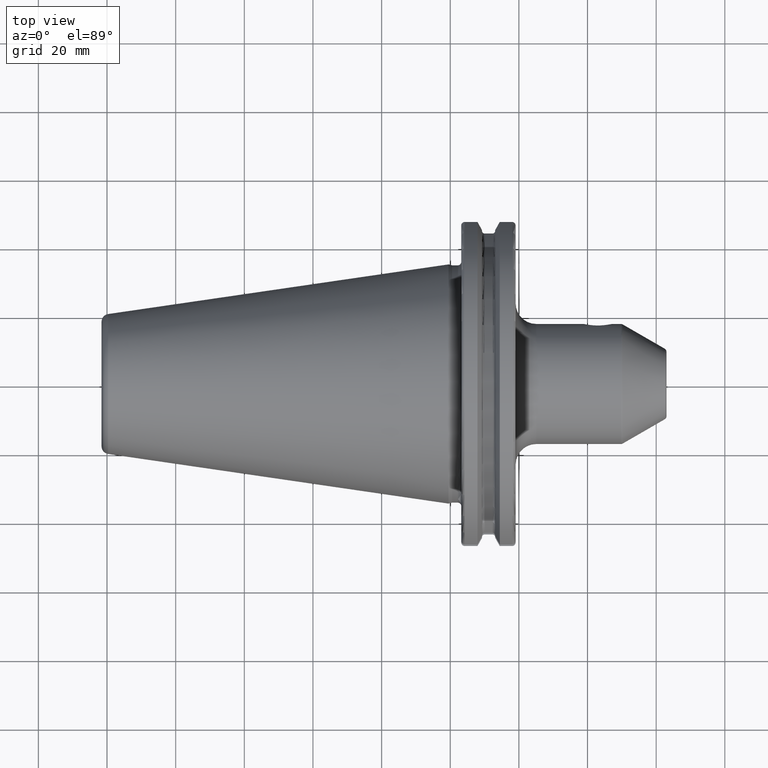
[diagram: clean part render]
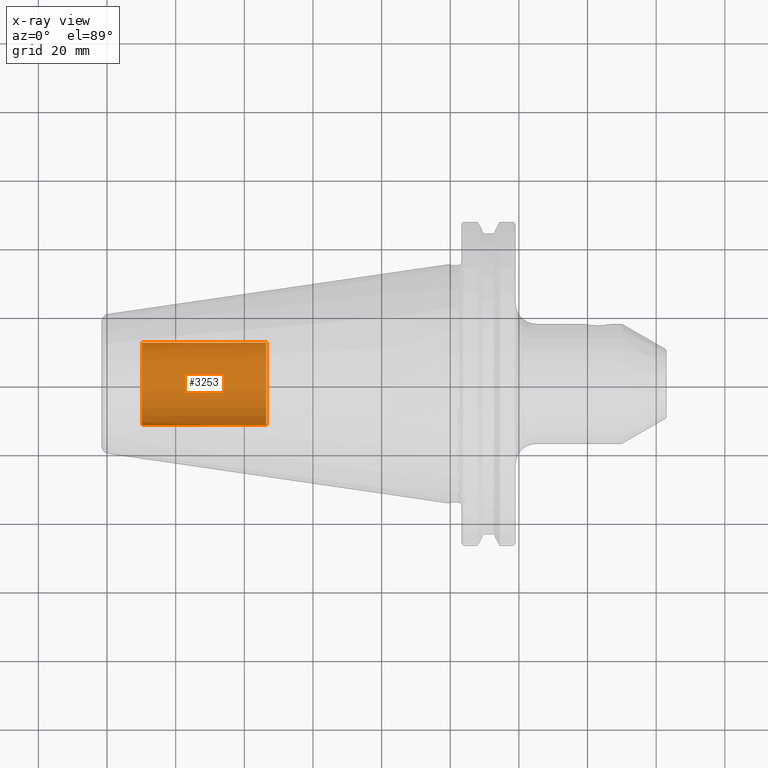
[diagram: x-ray — body ghosted, one internal face saturated and labeled with its STEP entity id]
A machine part, top view, then the same camera in x-ray: the body is ghosted and one INTERNAL B-rep face — a face not visible from any outside direction — is saturated and labeled: STEP entity #3253.
In plain terms, the highlighted cylindrical surface (partial cylindrical patch) has radius 12.0032 mm, axis along (1, 0, 0).
Its self-contained STEP definition (entity closure, byte-faithful):
#3188=CARTESIAN_POINT('',(-8.985E1,0.E0,0.E0));
#3189=DIRECTION('',(-1.E0,0.E0,0.E0));
#3190=DIRECTION('',(0.E0,1.E0,0.E0));
#3191=AXIS2_PLACEMENT_3D('',#3188,#3189,#3190);
#3193=DIRECTION('',(1.E0,0.E0,0.E0));
#3194=VECTOR('',#3193,3.625E1);
#3195=CARTESIAN_POINT('',(-8.985E1,-1.200325E1,0.E0));
#3196=LINE('',#3195,#3194);
#3202=DIRECTION('',(1.E0,0.E0,0.E0));
#3203=VECTOR('',#3202,3.625E1);
#3204=CARTESIAN_POINT('',(-8.985E1,1.200325E1,0.E0));
#3205=LINE('',#3204,#3203);
#3211=CARTESIAN_POINT('',(-5.36E1,0.E0,0.E0));
#3212=DIRECTION('',(1.E0,0.E0,0.E0));
#3213=DIRECTION('',(0.E0,-1.E0,0.E0));
#3214=AXIS2_PLACEMENT_3D('',#3211,#3212,#3213);
#3226=CARTESIAN_POINT('',(-8.985E1,1.200325E1,0.E0));
#3227=CARTESIAN_POINT('',(-8.985E1,-1.200325E1,0.E0));
#3228=VERTEX_POINT('',#3226);
#3229=VERTEX_POINT('',#3227);
#3230=CARTESIAN_POINT('',(-5.36E1,1.200325E1,0.E0));
#3231=CARTESIAN_POINT('',(-5.36E1,-1.200325E1,0.E0));
#3232=VERTEX_POINT('',#3230);
#3233=VERTEX_POINT('',#3231);
#3238=CARTESIAN_POINT('',(-8.985E1,0.E0,0.E0));
#3239=DIRECTION('',(1.E0,0.E0,0.E0));
#3240=DIRECTION('',(0.E0,1.E0,0.E0));
#3241=AXIS2_PLACEMENT_3D('',#3238,#3239,#3240);
#3242=CYLINDRICAL_SURFACE('',#3241,1.200325E1);
#3244=ORIENTED_EDGE('',*,*,#3243,.T.);
#3246=ORIENTED_EDGE('',*,*,#3245,.T.);
#3248=ORIENTED_EDGE('',*,*,#3247,.T.);
#3250=ORIENTED_EDGE('',*,*,#3249,.F.);
#3251=EDGE_LOOP('',(#3244,#3246,#3248,#3250));
#3252=FACE_OUTER_BOUND('',#3251,.F.);
#3253=ADVANCED_FACE('',(#3252),#3242,.T.);
#3192=CIRCLE('',#3191,1.200325E1);
#3215=CIRCLE('',#3214,1.200325E1);
#3243=EDGE_CURVE('',#3228,#3229,#3192,.T.);
#3245=EDGE_CURVE('',#3229,#3233,#3196,.T.);
#3247=EDGE_CURVE('',#3233,#3232,#3215,.T.);
#3249=EDGE_CURVE('',#3228,#3232,#3205,.T.);